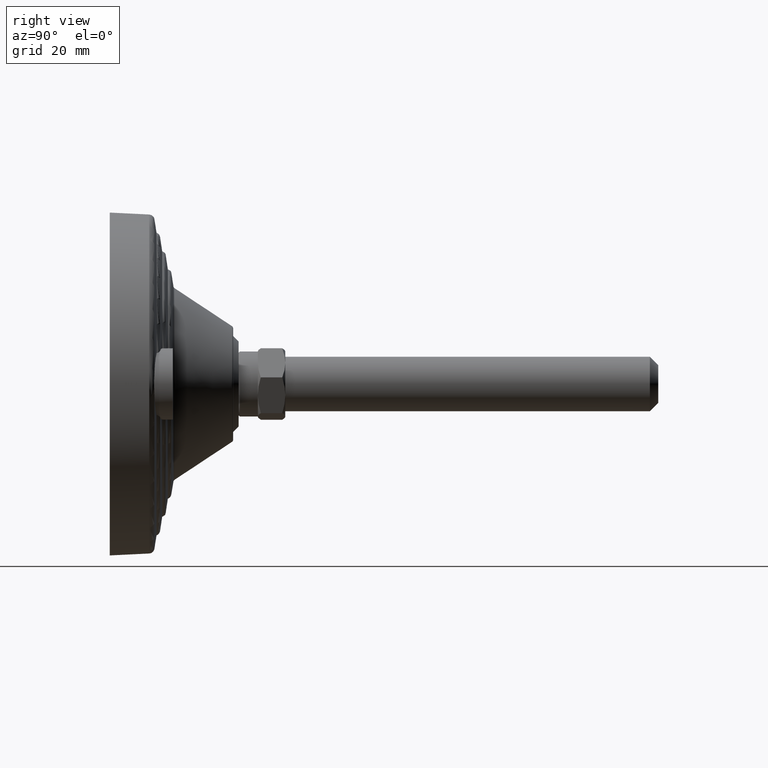
[diagram: clean part render]
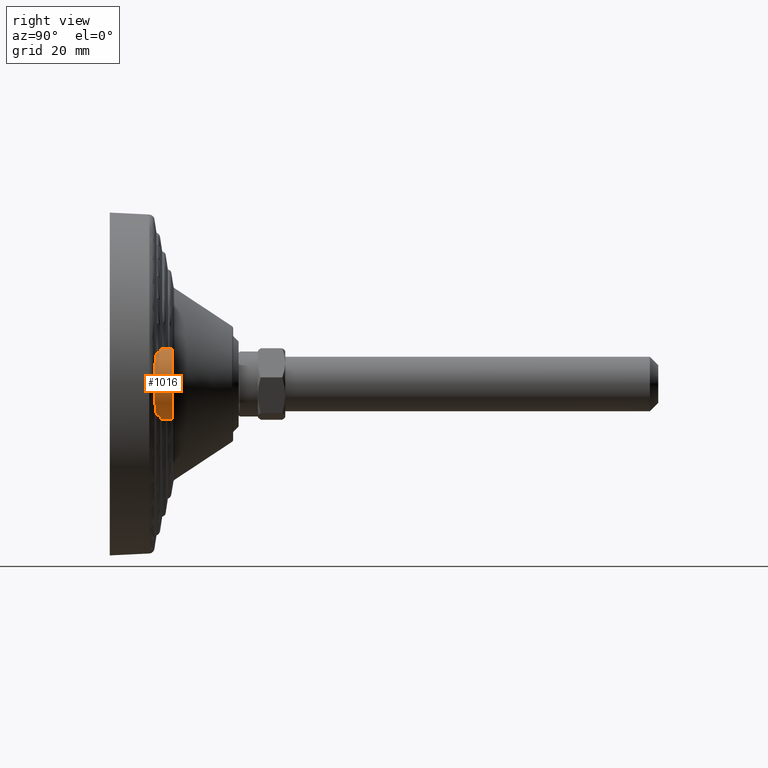
[diagram: same view with one face highlighted and labeled with its STEP entity id]
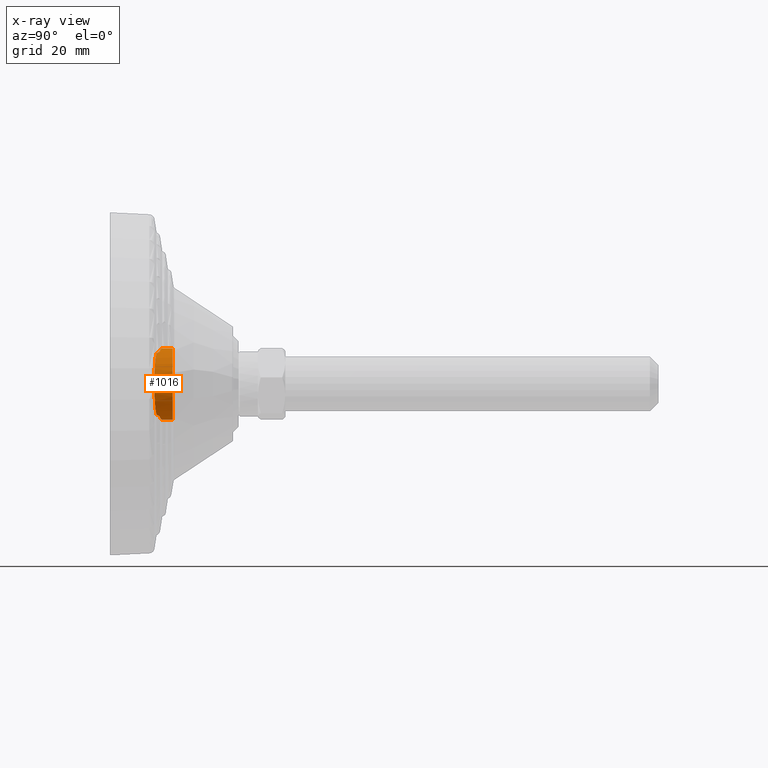
[diagram: x-ray of the same camera — body ghosted, the highlighted face saturated]
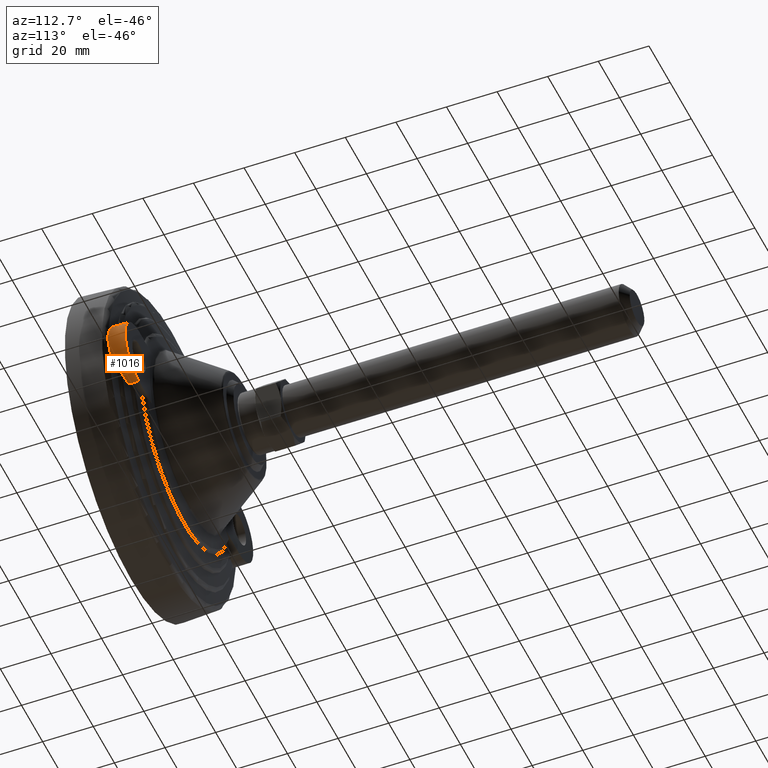
[diagram: same view with one face highlighted and labeled with its STEP entity id]
A machine part, right view. The second image highlights one B-rep face of the part: STEP entity #1016.
The next image is the same camera in x-ray: the body ghosted, the highlighted face saturated — about 0% of this face is hidden behind the body in this view.
A second angle (auxiliary view) of the same face is appended — the face is thin or edge-on in the first view.
In plain terms, the highlighted cylindrical surface (edge-blend (fillet) strip) has radius 13 mm, axis along (0, 1, 0).
Its self-contained STEP definition (entity closure, byte-faithful):
#107=B_SPLINE_CURVE_WITH_KNOTS('',3,(#1834,#1835,#1836,#1837,#1838,#1839,
#1840,#1841),.UNSPECIFIED.,.F.,.F.,(4,2,2,4),(-0.313461552979666,-0.21078588240572,
-0.124842330441578,-0.0711708543213357),.UNSPECIFIED.);
#108=B_SPLINE_CURVE_WITH_KNOTS('',3,(#1843,#1844,#1845,#1846,#1847,#1848),
 .UNSPECIFIED.,.F.,.F.,(4,2,4),(-4.04259844005978,-3.81004803520973,-3.57903328441249),
 .UNSPECIFIED.);
#109=B_SPLINE_CURVE_WITH_KNOTS('',3,(#1853,#1854,#1855,#1856,#1857,#1858),
 .UNSPECIFIED.,.F.,.F.,(4,2,4),(-7.5449657636788,-7.31395101288156,-7.08140060803151),
 .UNSPECIFIED.);
#110=B_SPLINE_CURVE_WITH_KNOTS('',3,(#1860,#1861,#1862,#1863,#1864,#1865,
#1866,#1867,#1868,#1869),.UNSPECIFIED.,.F.,.F.,(4,2,2,2,4),(-1.26635372066646,
-1.23938935149565,-1.1532032331497,-1.04896733289007,-1.03152191756293),
 .UNSPECIFIED.);
#111=B_SPLINE_CURVE_WITH_KNOTS('',3,(#1871,#1872,#1873,#1874,#1875,#1876,
#1877,#1878,#1879,#1880),.UNSPECIFIED.,.F.,.F.,(4,2,2,2,4),(-6.88717433846624,
-6.72728922451978,-6.43596826250158,-6.14464730048338,-5.91281761329815),
 .UNSPECIFIED.);
#112=B_SPLINE_CURVE_WITH_KNOTS('',3,(#1882,#1883,#1884,#1885,#1886,#1887,
#1888,#1889,#1890,#1891,#1892,#1893,#1894,#1895,#1896,#1897,#1898,#1899,
#1900,#1901,#1902),.UNSPECIFIED.,.F.,.F.,(4,2,2,2,2,3,2,2,2,4),(-0.358867027340746,
-0.245500168081023,-0.132397485851632,-0.0527304415943213,-0.0216624188598768,
0.,0.0204520721114276,0.0460578869355857,0.109917810056934,0.373739115146229),
 .UNSPECIFIED.);
#113=B_SPLINE_CURVE_WITH_KNOTS('',3,(#1903,#1904,#1905,#1906,#1907,#1908,
#1909,#1910,#1911,#1912),.UNSPECIFIED.,.F.,.F.,(4,2,2,2,4),(-5.21119313959581,
-4.97936345241058,-4.68804249039238,-4.39672152837418,-4.23683641442772),
 .UNSPECIFIED.);
#118=CYLINDRICAL_SURFACE('',#1187,13.);
#127=LINE('',#1809,#150);
#129=LINE('',#1850,#152);
#150=VECTOR('',#1349,1000.);
#152=VECTOR('',#1353,1000.);
#185=FACE_OUTER_BOUND('',#247,.T.);
#247=EDGE_LOOP('',(#675,#676,#677,#678,#679,#680,#681,#682,#683,#684));
#315=CIRCLE('',#1188,13.);
#406=VERTEX_POINT('',#1803);
#407=VERTEX_POINT('',#1808);
#411=VERTEX_POINT('',#1832);
#412=VERTEX_POINT('',#1833);
#413=VERTEX_POINT('',#1842);
#414=VERTEX_POINT('',#1849);
#415=VERTEX_POINT('',#1852);
#416=VERTEX_POINT('',#1859);
#417=VERTEX_POINT('',#1870);
#418=VERTEX_POINT('',#1881);
#512=EDGE_CURVE('',#407,#406,#127,.T.);
#517=EDGE_CURVE('',#411,#412,#107,.T.);
#518=EDGE_CURVE('',#411,#413,#108,.T.);
#519=EDGE_CURVE('',#414,#413,#129,.T.);
#520=EDGE_CURVE('',#407,#414,#315,.T.);
#521=EDGE_CURVE('',#406,#415,#109,.T.);
#522=EDGE_CURVE('',#416,#415,#110,.T.);
#523=EDGE_CURVE('',#416,#417,#111,.T.);
#524=EDGE_CURVE('',#418,#417,#112,.T.);
#525=EDGE_CURVE('',#418,#412,#113,.T.);
#675=ORIENTED_EDGE('',*,*,#517,.F.);
#676=ORIENTED_EDGE('',*,*,#518,.T.);
#677=ORIENTED_EDGE('',*,*,#519,.F.);
#678=ORIENTED_EDGE('',*,*,#520,.F.);
#679=ORIENTED_EDGE('',*,*,#512,.T.);
#680=ORIENTED_EDGE('',*,*,#521,.T.);
#681=ORIENTED_EDGE('',*,*,#522,.F.);
#682=ORIENTED_EDGE('',*,*,#523,.T.);
#683=ORIENTED_EDGE('',*,*,#524,.F.);
#684=ORIENTED_EDGE('',*,*,#525,.T.);
#1016=ADVANCED_FACE('',(#185),#118,.T.);
#1187=AXIS2_PLACEMENT_3D('',#1831,#1351,#1352);
#1188=AXIS2_PLACEMENT_3D('',#1851,#1354,#1355);
#1349=DIRECTION('',(0.,-1.,0.));
#1351=DIRECTION('center_axis',(0.,1.,0.));
#1352=DIRECTION('ref_axis',(0.,0.,-1.));
#1353=DIRECTION('',(0.,-1.,0.));
#1354=DIRECTION('center_axis',(0.,1.,0.));
#1355=DIRECTION('ref_axis',(1.,0.,0.));
#1803=CARTESIAN_POINT('',(47.5,19.0340907826061,13.));
#1808=CARTESIAN_POINT('',(47.5,23.,13.));
#1809=CARTESIAN_POINT('',(47.5,23.,13.));
#1831=CARTESIAN_POINT('Origin',(47.5,23.,8.67361737988404E-16));
#1832=CARTESIAN_POINT('',(52.1958062555832,18.3548624136849,-12.1222689134512));
#1833=CARTESIAN_POINT('',(53.9926742300544,17.0633970349418,-11.2625566077329));
#1834=CARTESIAN_POINT('Ctrl Pts',(52.1958062555832,18.3548624136849,-12.1222689134512));
#1835=CARTESIAN_POINT('Ctrl Pts',(52.5213834451256,18.309669783771,-11.9961499983996));
#1836=CARTESIAN_POINT('Ctrl Pts',(52.8346812060556,18.2018984663841,-11.8590234924828));
#1837=CARTESIAN_POINT('Ctrl Pts',(53.3460982090754,17.9014159140513,-11.614210236823));
#1838=CARTESIAN_POINT('Ctrl Pts',(53.5574464921752,17.7235857921921,-11.5041297510689));
#1839=CARTESIAN_POINT('Ctrl Pts',(53.8341672481986,17.3738138686939,-11.3531058426834));
#1840=CARTESIAN_POINT('Ctrl Pts',(53.9244244663048,17.2247758252378,-11.3019014472518));
#1841=CARTESIAN_POINT('Ctrl Pts',(53.9926742300544,17.0633970349418,-11.2625566077329));
#1842=CARTESIAN_POINT('',(47.5,19.0340907826061,-13.));
#1843=CARTESIAN_POINT('Ctrl Pts',(52.1958062555832,18.3548624136849,-12.1222689134512));
#1844=CARTESIAN_POINT('Ctrl Pts',(51.4487669246867,18.4585444359864,-12.4116497206447));
#1845=CARTESIAN_POINT('Ctrl Pts',(50.6703762605506,18.5685203869713,-12.6331340097971));
#1846=CARTESIAN_POINT('Ctrl Pts',(49.0936067465576,18.7962621519413,-12.9266878620499));
#1847=CARTESIAN_POINT('Ctrl Pts',(48.2940140594721,18.9141814143089,-13.));
#1848=CARTESIAN_POINT('Ctrl Pts',(47.5,19.034090782606,-13.));
#1849=CARTESIAN_POINT('',(47.5,23.,-13.));
#1850=CARTESIAN_POINT('',(47.5,23.,-13.));
#1851=CARTESIAN_POINT('Origin',(47.5,23.,8.67361737988404E-16));
#1852=CARTESIAN_POINT('',(52.1958062555832,18.3548624136849,12.1222689134512));
#1853=CARTESIAN_POINT('Ctrl Pts',(47.5,19.034090782606,13.));
#1854=CARTESIAN_POINT('Ctrl Pts',(48.2940140594721,18.9141814143089,13.));
#1855=CARTESIAN_POINT('Ctrl Pts',(49.0936067465576,18.7962621519413,12.9266878620499));
#1856=CARTESIAN_POINT('Ctrl Pts',(50.6703762605506,18.5685203869713,12.6331340097971));
#1857=CARTESIAN_POINT('Ctrl Pts',(51.4487669246867,18.4585444359864,12.4116497206447));
#1858=CARTESIAN_POINT('Ctrl Pts',(52.1958062555832,18.3548624136849,12.1222689134512));
#1859=CARTESIAN_POINT('',(53.9926742300544,17.0633970349418,11.2625566077329));
#1860=CARTESIAN_POINT('Ctrl Pts',(53.9926742300544,17.0633970349418,11.2625566077329));
#1861=CARTESIAN_POINT('Ctrl Pts',(53.9586911290423,17.1437511846199,11.2821472932125));
#1862=CARTESIAN_POINT('Ctrl Pts',(53.9192699413268,17.2210011454506,11.3046686270266));
#1863=CARTESIAN_POINT('Ctrl Pts',(53.7342597452895,17.5308679246591,11.4087752338443));
#1864=CARTESIAN_POINT('Ctrl Pts',(53.5417373449235,17.7388507731139,11.513644614639));
#1865=CARTESIAN_POINT('Ctrl Pts',(53.0316740816156,18.113081068237,11.7685174228563));
#1866=CARTESIAN_POINT('Ctrl Pts',(52.707347137614,18.2537418394542,11.9171182374578));
#1867=CARTESIAN_POINT('Ctrl Pts',(52.3108554262618,18.3368689756176,12.0772276742586));
#1868=CARTESIAN_POINT('Ctrl Pts',(52.2535153074904,18.3468519513144,12.0999141439865));
#1869=CARTESIAN_POINT('Ctrl Pts',(52.1958062555832,18.3548624136849,12.1222689134512));
#1870=CARTESIAN_POINT('',(60.0067549969532,16.2872624136849,3.54698173750402));
#1871=CARTESIAN_POINT('Ctrl Pts',(53.9926742300544,17.0633970349417,11.2625566077329));
#1872=CARTESIAN_POINT('Ctrl Pts',(54.4625359673222,17.0000353345662,10.9916892283713));
#1873=CARTESIAN_POINT('Ctrl Pts',(54.9111728935395,16.9402332893037,10.6937098334079));
#1874=CARTESIAN_POINT('Ctrl Pts',(56.1048015081625,16.782539519242,9.79234402125425));
#1875=CARTESIAN_POINT('Ctrl Pts',(56.8317334969817,16.6882968745045,9.10643926727195));
#1876=CARTESIAN_POINT('Ctrl Pts',(58.1195990677353,16.5233642607594,7.5652231840874));
#1877=CARTESIAN_POINT('Ctrl Pts',(58.680634216785,16.4526280105312,6.71000168213706));
#1878=CARTESIAN_POINT('Ctrl Pts',(59.4942445998966,16.3507825766364,5.07846619538224));
#1879=CARTESIAN_POINT('Ctrl Pts',(59.7873586021914,16.3144088090844,4.32057944946478));
#1880=CARTESIAN_POINT('Ctrl Pts',(60.0067549969532,16.2872624136849,3.54698173750401));
#1881=CARTESIAN_POINT('',(60.0067549969532,16.2872624136854,-3.54698173750404));
#1882=CARTESIAN_POINT('Ctrl Pts',(60.0067549969532,16.2872624136849,-3.54698173750405));
#1883=CARTESIAN_POINT('Ctrl Pts',(60.1065753081713,16.2749102931245,-3.19501257935342));
#1884=CARTESIAN_POINT('Ctrl Pts',(60.1936389683964,16.259330127239,-2.83145046388783));
#1885=CARTESIAN_POINT('Ctrl Pts',(60.3376843465352,16.2291799141504,-2.08297021193679));
#1886=CARTESIAN_POINT('Ctrl Pts',(60.3931004983766,16.2150511873013,-1.70657579385385));
#1887=CARTESIAN_POINT('Ctrl Pts',(60.4592967805478,16.197344565956,-1.06221058400707));
#1888=CARTESIAN_POINT('Ctrl Pts',(60.4783788375497,16.1918710186186,-0.795617489207767));
#1889=CARTESIAN_POINT('Ctrl Pts',(60.4934779308786,16.187516719992,-0.424709575562495));
#1890=CARTESIAN_POINT('Ctrl Pts',(60.4964571794897,16.186648500861,-0.320759985534982));
#1891=CARTESIAN_POINT('Ctrl Pts',(60.4993984417617,16.185790565175,-0.144513164531727));
#1892=CARTESIAN_POINT('Ctrl Pts',(60.5,16.1856144900656,-0.0722080628662523));
#1893=CARTESIAN_POINT('Ctrl Pts',(60.5,16.1856144900656,3.70455656742074E-15));
#1894=CARTESIAN_POINT('Ctrl Pts',(60.5,16.1856144900656,0.0681735737047637));
#1895=CARTESIAN_POINT('Ctrl Pts',(60.4994637770519,16.1857714201211,0.136341643844639));
#1896=CARTESIAN_POINT('Ctrl Pts',(60.4970486454639,16.1864760689469,0.289847260833907));
#1897=CARTESIAN_POINT('Ctrl Pts',(60.4948677114086,16.1871117651029,0.375040978271151));
#1898=CARTESIAN_POINT('Ctrl Pts',(60.4843440970464,16.190156736599,0.67220238709808));
#1899=CARTESIAN_POINT('Ctrl Pts',(60.4716575578454,16.1938102305003,0.883664703395856));
#1900=CARTESIAN_POINT('Ctrl Pts',(60.3802566891287,16.2189835796882,1.96544388908268));
#1901=CARTESIAN_POINT('Ctrl Pts',(60.2228474338187,16.2605223664962,2.78503387180294));
#1902=CARTESIAN_POINT('Ctrl Pts',(60.0067549969532,16.2872624136849,3.54698173750401));
#1903=CARTESIAN_POINT('Ctrl Pts',(60.0067549969532,16.2872624136849,-3.54698173750404));
#1904=CARTESIAN_POINT('Ctrl Pts',(59.7873586021914,16.3144088090844,-4.32057944946479));
#1905=CARTESIAN_POINT('Ctrl Pts',(59.4942445998966,16.3507825766364,-5.07846619538225));
#1906=CARTESIAN_POINT('Ctrl Pts',(58.680634216785,16.4526280105312,-6.71000168213706));
#1907=CARTESIAN_POINT('Ctrl Pts',(58.1195990677353,16.5233642607594,-7.5652231840874));
#1908=CARTESIAN_POINT('Ctrl Pts',(56.8317334969817,16.6882968745045,-9.10643926727196));
#1909=CARTESIAN_POINT('Ctrl Pts',(56.1048015081625,16.782539519242,-9.79234402125425));
#1910=CARTESIAN_POINT('Ctrl Pts',(54.9111728935395,16.9402332893037,-10.6937098334079));
#1911=CARTESIAN_POINT('Ctrl Pts',(54.4625359673222,17.0000353345662,-10.9916892283714));
#1912=CARTESIAN_POINT('Ctrl Pts',(53.9926742300544,17.0633970349417,-11.2625566077329));